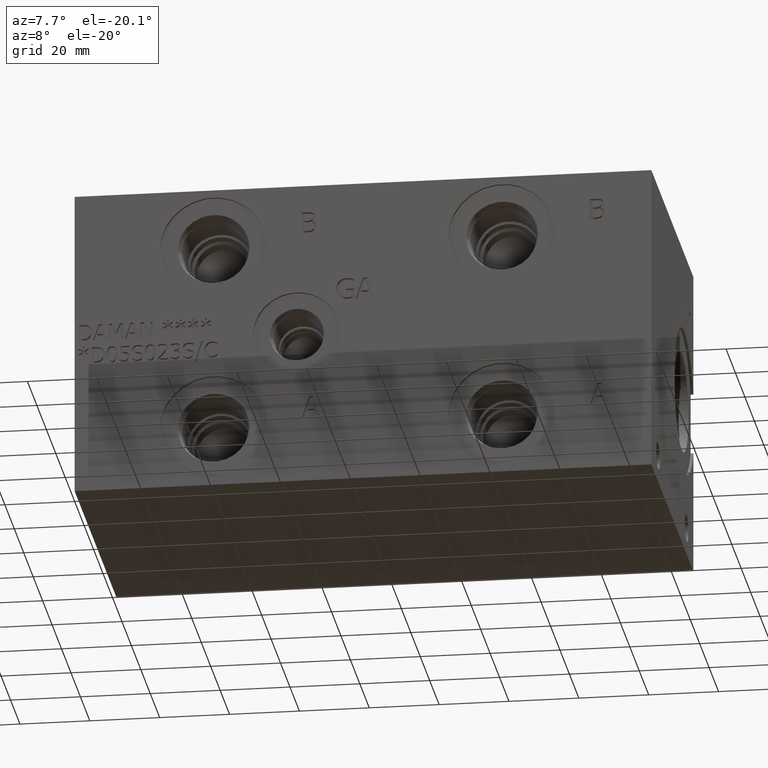
[diagram: clean part render]
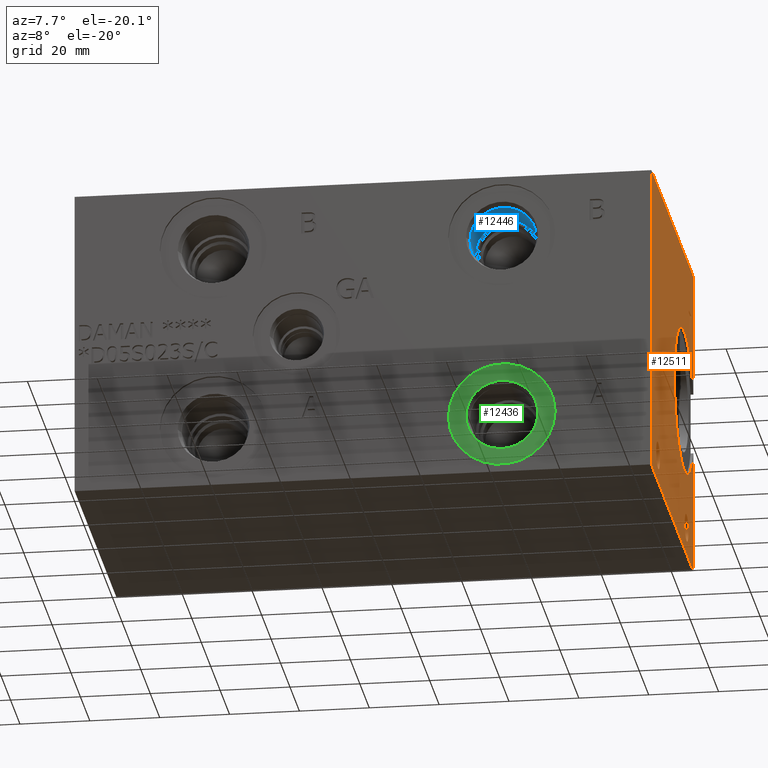
[diagram: same view with three faces highlighted in distinct colors, each labeled with its STEP entity id]
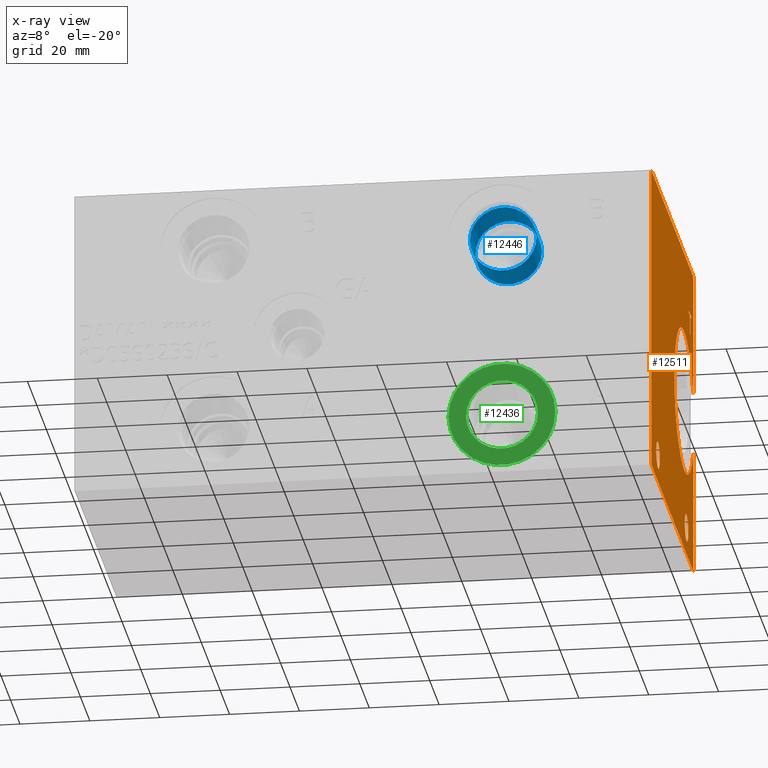
[diagram: x-ray of the same camera — body ghosted, the three highlighted faces saturated]
A machine part, auxiliary view with three faces highlighted in distinct colors.
The next image is the same camera in x-ray (body ghosted, the three faces saturated) — at least one of them is partly hidden behind the body in this view.
Their STEP definitions:

[orange] entity #12511 — the highlighted planar face has unit normal (1, 0, 0).
#543=CIRCLE('',#13191,3.9624);
#544=CIRCLE('',#13192,3.9624);
#550=CIRCLE('',#13202,3.9624);
#551=CIRCLE('',#13203,3.9624);
#566=CIRCLE('',#13228,21.0185);
#1036=FACE_BOUND('',#2399,.T.);
#1037=FACE_BOUND('',#2400,.T.);
#1038=FACE_BOUND('',#2401,.T.);
#1680=FACE_OUTER_BOUND('',#2398,.T.);
#2398=EDGE_LOOP('',(#10915,#10916,#10917,#10918,#10919,#10920));
#2399=EDGE_LOOP('',(#10921,#10922,#10923,#10924,#10925,#10926,#10927,#10928));
#2400=EDGE_LOOP('',(#10929,#10930));
#2401=EDGE_LOOP('',(#10931,#10932));
#2481=LINE('',#15955,#3585);
#3356=LINE('',#20704,#4460);
#3360=LINE('',#20712,#4464);
#3363=LINE('',#20718,#4467);
#3366=LINE('',#20724,#4470);
#3369=LINE('',#20730,#4473);
#3372=LINE('',#20736,#4476);
#3375=LINE('',#20742,#4479);
#3378=LINE('',#20747,#4482);
#3530=LINE('',#21718,#4634);
#3531=LINE('',#21719,#4635);
#3532=LINE('',#21721,#4636);
#3533=LINE('',#21722,#4637);
#3585=VECTOR('',#13354,10.);
#4460=VECTOR('',#14791,10.);
#4464=VECTOR('',#14797,10.);
#4467=VECTOR('',#14802,10.);
#4470=VECTOR('',#14807,10.);
#4473=VECTOR('',#14812,10.);
#4476=VECTOR('',#14817,10.);
#4479=VECTOR('',#14822,10.);
#4482=VECTOR('',#14827,10.);
#4634=VECTOR('',#15757,10.);
#4635=VECTOR('',#15758,10.);
#4636=VECTOR('',#15759,10.);
#4637=VECTOR('',#15760,10.);
#4678=VERTEX_POINT('',#15952);
#4679=VERTEX_POINT('',#15954);
#5503=VERTEX_POINT('',#20702);
#5504=VERTEX_POINT('',#20703);
#5507=VERTEX_POINT('',#20711);
#5509=VERTEX_POINT('',#20717);
#5511=VERTEX_POINT('',#20723);
#5513=VERTEX_POINT('',#20729);
#5515=VERTEX_POINT('',#20735);
#5517=VERTEX_POINT('',#20741);
#5786=VERTEX_POINT('',#21616);
#5787=VERTEX_POINT('',#21617);
#5794=VERTEX_POINT('',#21638);
#5795=VERTEX_POINT('',#21639);
#5811=VERTEX_POINT('',#21689);
#5813=VERTEX_POINT('',#21693);
#5820=VERTEX_POINT('',#21717);
#5821=VERTEX_POINT('',#21720);
#5887=EDGE_CURVE('',#4678,#4679,#2481,.T.);
#7118=EDGE_CURVE('',#5503,#5504,#3356,.T.);
#7122=EDGE_CURVE('',#5507,#5503,#3360,.T.);
#7125=EDGE_CURVE('',#5509,#5507,#3363,.T.);
#7128=EDGE_CURVE('',#5511,#5509,#3366,.T.);
#7131=EDGE_CURVE('',#5513,#5511,#3369,.T.);
#7134=EDGE_CURVE('',#5515,#5513,#3372,.T.);
#7137=EDGE_CURVE('',#5517,#5515,#3375,.T.);
#7140=EDGE_CURVE('',#5504,#5517,#3378,.T.);
#7500=EDGE_CURVE('',#5786,#5787,#543,.T.);
#7501=EDGE_CURVE('',#5787,#5786,#544,.T.);
#7510=EDGE_CURVE('',#5794,#5795,#550,.T.);
#7511=EDGE_CURVE('',#5795,#5794,#551,.T.);
#7537=EDGE_CURVE('',#5811,#5813,#566,.T.);
#7548=EDGE_CURVE('',#5813,#5820,#3530,.T.);
#7549=EDGE_CURVE('',#4679,#5820,#3531,.T.);
#7550=EDGE_CURVE('',#4678,#5821,#3532,.T.);
#7551=EDGE_CURVE('',#5821,#5811,#3533,.T.);
#10915=ORIENTED_EDGE('',*,*,#7537,.T.);
#10916=ORIENTED_EDGE('',*,*,#7548,.T.);
#10917=ORIENTED_EDGE('',*,*,#7549,.F.);
#10918=ORIENTED_EDGE('',*,*,#5887,.F.);
#10919=ORIENTED_EDGE('',*,*,#7550,.T.);
#10920=ORIENTED_EDGE('',*,*,#7551,.T.);
#10921=ORIENTED_EDGE('',*,*,#7118,.T.);
#10922=ORIENTED_EDGE('',*,*,#7140,.T.);
#10923=ORIENTED_EDGE('',*,*,#7137,.T.);
#10924=ORIENTED_EDGE('',*,*,#7134,.T.);
#10925=ORIENTED_EDGE('',*,*,#7131,.T.);
#10926=ORIENTED_EDGE('',*,*,#7128,.T.);
#10927=ORIENTED_EDGE('',*,*,#7125,.T.);
#10928=ORIENTED_EDGE('',*,*,#7122,.T.);
#10929=ORIENTED_EDGE('',*,*,#7500,.T.);
#10930=ORIENTED_EDGE('',*,*,#7501,.T.);
#10931=ORIENTED_EDGE('',*,*,#7510,.T.);
#10932=ORIENTED_EDGE('',*,*,#7511,.T.);
#11411=PLANE('',#13239);
#12511=ADVANCED_FACE('',(#1680,#1036,#1037,#1038),#11411,.T.);
#13191=AXIS2_PLACEMENT_3D('',#21618,#15641,#15642);
#13192=AXIS2_PLACEMENT_3D('',#21619,#15643,#15644);
#13202=AXIS2_PLACEMENT_3D('',#21640,#15666,#15667);
#13203=AXIS2_PLACEMENT_3D('',#21641,#15668,#15669);
#13228=AXIS2_PLACEMENT_3D('',#21695,#15729,#15730);
#13239=AXIS2_PLACEMENT_3D('',#21716,#15755,#15756);
#13354=DIRECTION('',(0.,0.,1.));
#14791=DIRECTION('',(0.,-1.,0.));
#14797=DIRECTION('',(0.,0.,-1.));
#14802=DIRECTION('',(0.,-1.,0.));
#14807=DIRECTION('',(0.,0.,-1.));
#14812=DIRECTION('',(0.,1.,0.));
#14817=DIRECTION('',(0.,0.,1.));
#14822=DIRECTION('',(0.,-1.,0.));
#14827=DIRECTION('',(0.,0.,1.));
#15641=DIRECTION('center_axis',(-1.,0.,0.));
#15642=DIRECTION('ref_axis',(0.,1.,0.));
#15643=DIRECTION('center_axis',(-1.,0.,0.));
#15644=DIRECTION('ref_axis',(0.,1.,0.));
#15666=DIRECTION('center_axis',(-1.,0.,0.));
#15667=DIRECTION('ref_axis',(0.,1.,0.));
#15668=DIRECTION('center_axis',(-1.,0.,0.));
#15669=DIRECTION('ref_axis',(0.,1.,0.));
#15729=DIRECTION('center_axis',(-1.,0.,0.));
#15730=DIRECTION('ref_axis',(0.,0.,-1.));
#15755=DIRECTION('center_axis',(1.,0.,0.));
#15756=DIRECTION('ref_axis',(0.,1.,0.));
#15757=DIRECTION('',(0.,0.,1.));
#15758=DIRECTION('',(0.,1.,0.));
#15759=DIRECTION('',(0.,1.,0.));
#15760=DIRECTION('',(0.,0.,1.));
#15952=CARTESIAN_POINT('',(165.1,0.,0.));
#15954=CARTESIAN_POINT('',(165.1,0.,88.9));
#15955=CARTESIAN_POINT('',(165.1,0.,0.));
#20702=CARTESIAN_POINT('',(165.1,82.344165271453,69.05625));
#20703=CARTESIAN_POINT('',(165.1,81.5002430799135,69.05625));
#20704=CARTESIAN_POINT('',(165.1,41.1720826357265,69.05625));
#20711=CARTESIAN_POINT('',(165.1,82.344165271453,74.6549533194816));
#20712=CARTESIAN_POINT('',(165.1,82.344165271453,37.3274766597408));
#20717=CARTESIAN_POINT('',(165.1,84.4745542183881,74.6549533194816));
#20718=CARTESIAN_POINT('',(165.1,42.237277109194,74.6549533194816));
#20723=CARTESIAN_POINT('',(165.1,84.4745542183881,75.4062499046326));
#20724=CARTESIAN_POINT('',(165.1,84.4745542183881,37.7031249523163));
#20729=CARTESIAN_POINT('',(165.1,79.3698541329784,75.4062499046326));
#20730=CARTESIAN_POINT('',(165.1,39.6849270664892,75.4062499046326));
#20735=CARTESIAN_POINT('',(165.1,79.3698541329784,74.6549533194816));
#20736=CARTESIAN_POINT('',(165.1,79.3698541329784,37.3274766597408));
#20741=CARTESIAN_POINT('',(165.1,81.5002430799135,74.6549533194816));
#20742=CARTESIAN_POINT('',(165.1,40.7501215399568,74.6549533194816));
#20747=CARTESIAN_POINT('',(165.1,81.5002430799135,34.528125));
#21616=CARTESIAN_POINT('',(165.1,18.2372,7.9248));
#21617=CARTESIAN_POINT('',(165.1,10.3124,7.9248));
#21618=CARTESIAN_POINT('Origin',(165.1,14.2748,7.9248));
#21619=CARTESIAN_POINT('Origin',(165.1,14.2748,7.9248));
#21638=CARTESIAN_POINT('',(165.1,78.5876,7.9248));
#21639=CARTESIAN_POINT('',(165.1,70.6628,7.9248));
#21640=CARTESIAN_POINT('Origin',(165.1,74.6252,7.9248));
#21641=CARTESIAN_POINT('Origin',(165.1,74.6252,7.9248));
#21689=CARTESIAN_POINT('',(165.1,88.9,35.5688490469985));
#21693=CARTESIAN_POINT('',(165.1,88.9,53.3311509530015));
#21695=CARTESIAN_POINT('Origin',(165.1,69.85,44.45));
#21716=CARTESIAN_POINT('Origin',(165.1,0.,0.));
#21717=CARTESIAN_POINT('',(165.1,88.9,88.9));
#21718=CARTESIAN_POINT('',(165.1,88.9,0.));
#21719=CARTESIAN_POINT('',(165.1,0.,88.9));
#21720=CARTESIAN_POINT('',(165.1,88.9,0.));
#21721=CARTESIAN_POINT('',(165.1,0.,0.));
#21722=CARTESIAN_POINT('',(165.1,88.9,0.));

[blue] entity #12446 — the highlighted cylindrical surface (bore or boss wall) has radius 9.525 mm, axis along (0, -1, 0).
#102=CYLINDRICAL_SURFACE('',#13074,9.525);
#470=CIRCLE('',#13071,9.525);
#471=CIRCLE('',#13072,9.525);
#473=CIRCLE('',#13075,9.525);
#1615=FACE_OUTER_BOUND('',#2321,.T.);
#2321=EDGE_LOOP('',(#10598,#10599,#10600,#10601,#10602));
#3475=LINE('',#21391,#4579);
#4579=VECTOR('',#15374,9.525);
#5709=VERTEX_POINT('',#21382);
#5710=VERTEX_POINT('',#21383);
#5712=VERTEX_POINT('',#21389);
#7390=EDGE_CURVE('',#5709,#5710,#470,.T.);
#7391=EDGE_CURVE('',#5710,#5709,#471,.T.);
#7393=EDGE_CURVE('',#5712,#5712,#473,.T.);
#7394=EDGE_CURVE('',#5712,#5710,#3475,.T.);
#10598=ORIENTED_EDGE('',*,*,#7393,.F.);
#10599=ORIENTED_EDGE('',*,*,#7394,.T.);
#10600=ORIENTED_EDGE('',*,*,#7390,.F.);
#10601=ORIENTED_EDGE('',*,*,#7391,.F.);
#10602=ORIENTED_EDGE('',*,*,#7394,.F.);
#12446=ADVANCED_FACE('',(#1615),#102,.F.);
#13071=AXIS2_PLACEMENT_3D('',#21384,#15364,#15365);
#13072=AXIS2_PLACEMENT_3D('',#21385,#15366,#15367);
#13074=AXIS2_PLACEMENT_3D('',#21388,#15370,#15371);
#13075=AXIS2_PLACEMENT_3D('',#21390,#15372,#15373);
#15364=DIRECTION('center_axis',(0.,-1.,0.));
#15365=DIRECTION('ref_axis',(1.,0.,0.));
#15366=DIRECTION('center_axis',(0.,-1.,0.));
#15367=DIRECTION('ref_axis',(1.,0.,0.));
#15370=DIRECTION('center_axis',(0.,-1.,0.));
#15371=DIRECTION('ref_axis',(1.,0.,0.));
#15372=DIRECTION('center_axis',(0.,1.,0.));
#15373=DIRECTION('ref_axis',(1.,0.,0.));
#15374=DIRECTION('',(0.,1.,0.));
#21382=CARTESIAN_POINT('',(131.7498,15.0622,71.4502));
#21383=CARTESIAN_POINT('',(112.6998,15.0622,71.4502));
#21384=CARTESIAN_POINT('Origin',(122.2248,15.0622,71.4502));
#21385=CARTESIAN_POINT('Origin',(122.2248,15.0622,71.4502));
#21388=CARTESIAN_POINT('Origin',(122.2248,7.5311,71.4502));
#21389=CARTESIAN_POINT('',(112.6998,3.4036,71.4502));
#21390=CARTESIAN_POINT('Origin',(122.2248,3.4036,71.4502));
#21391=CARTESIAN_POINT('',(112.6998,7.5311,71.4502));

[green] entity #12436 — the highlighted planar face has unit normal (0, 1, 0).
#453=CIRCLE('',#13044,15.3162);
#454=CIRCLE('',#13045,15.3162);
#455=CIRCLE('',#13047,10.2997);
#456=CIRCLE('',#13048,10.2997);
#1022=FACE_BOUND('',#2310,.T.);
#1605=FACE_OUTER_BOUND('',#2309,.T.);
#2309=EDGE_LOOP('',(#10551,#10552));
#2310=EDGE_LOOP('',(#10553,#10554));
#5690=VERTEX_POINT('',#21327);
#5691=VERTEX_POINT('',#21329);
#5692=VERTEX_POINT('',#21333);
#5693=VERTEX_POINT('',#21334);
#7365=EDGE_CURVE('',#5690,#5691,#453,.T.);
#7366=EDGE_CURVE('',#5691,#5690,#454,.T.);
#7367=EDGE_CURVE('',#5692,#5693,#455,.T.);
#7368=EDGE_CURVE('',#5693,#5692,#456,.T.);
#10551=ORIENTED_EDGE('',*,*,#7366,.F.);
#10552=ORIENTED_EDGE('',*,*,#7365,.F.);
#10553=ORIENTED_EDGE('',*,*,#7367,.T.);
#10554=ORIENTED_EDGE('',*,*,#7368,.T.);
#11397=PLANE('',#13046);
#12436=ADVANCED_FACE('',(#1605,#1022),#11397,.F.);
#13044=AXIS2_PLACEMENT_3D('',#21330,#15302,#15303);
#13045=AXIS2_PLACEMENT_3D('',#21331,#15304,#15305);
#13046=AXIS2_PLACEMENT_3D('',#21332,#15306,#15307);
#13047=AXIS2_PLACEMENT_3D('',#21335,#15308,#15309);
#13048=AXIS2_PLACEMENT_3D('',#21336,#15310,#15311);
#15302=DIRECTION('center_axis',(0.,1.,0.));
#15303=DIRECTION('ref_axis',(1.,0.,0.));
#15304=DIRECTION('center_axis',(0.,1.,0.));
#15305=DIRECTION('ref_axis',(1.,0.,0.));
#15306=DIRECTION('center_axis',(0.,1.,0.));
#15307=DIRECTION('ref_axis',(0.,0.,1.));
#15308=DIRECTION('center_axis',(0.,1.,0.));
#15309=DIRECTION('ref_axis',(1.,0.,0.));
#15310=DIRECTION('center_axis',(0.,1.,0.));
#15311=DIRECTION('ref_axis',(1.,0.,0.));
#21327=CARTESIAN_POINT('',(106.9086,0.7874,17.4752));
#21329=CARTESIAN_POINT('',(137.541,0.7874,17.4752));
#21330=CARTESIAN_POINT('Origin',(122.2248,0.7874,17.4752));
#21331=CARTESIAN_POINT('Origin',(122.2248,0.7874,17.4752));
#21332=CARTESIAN_POINT('Origin',(132.5245,0.7874,17.4752));
#21333=CARTESIAN_POINT('',(132.5245,0.7874,17.4752));
#21334=CARTESIAN_POINT('',(111.9251,0.787399999999997,17.4752));
#21335=CARTESIAN_POINT('Origin',(122.2248,0.7874,17.4752));
#21336=CARTESIAN_POINT('Origin',(122.2248,0.7874,17.4752));